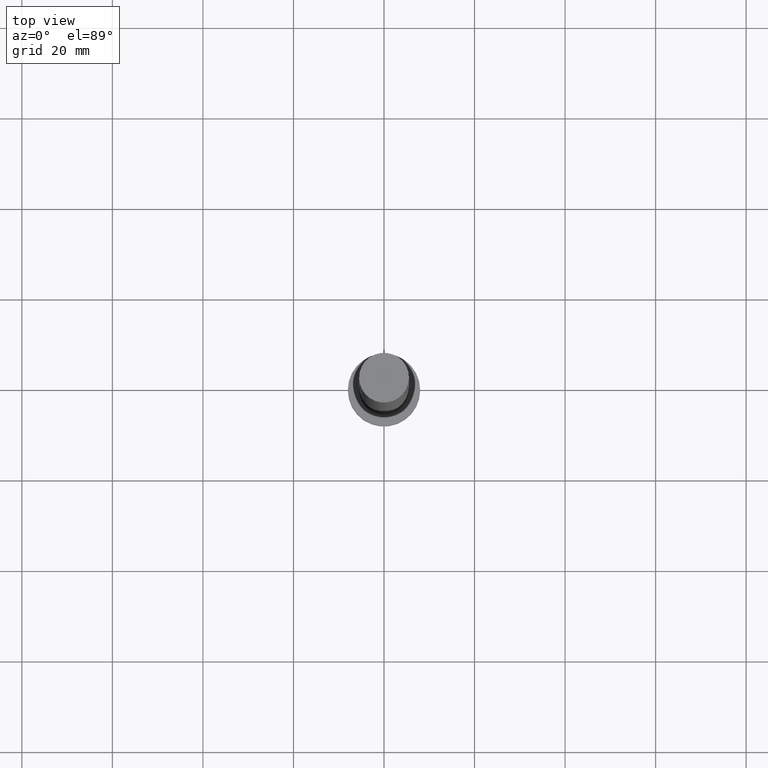
[diagram: clean part render]
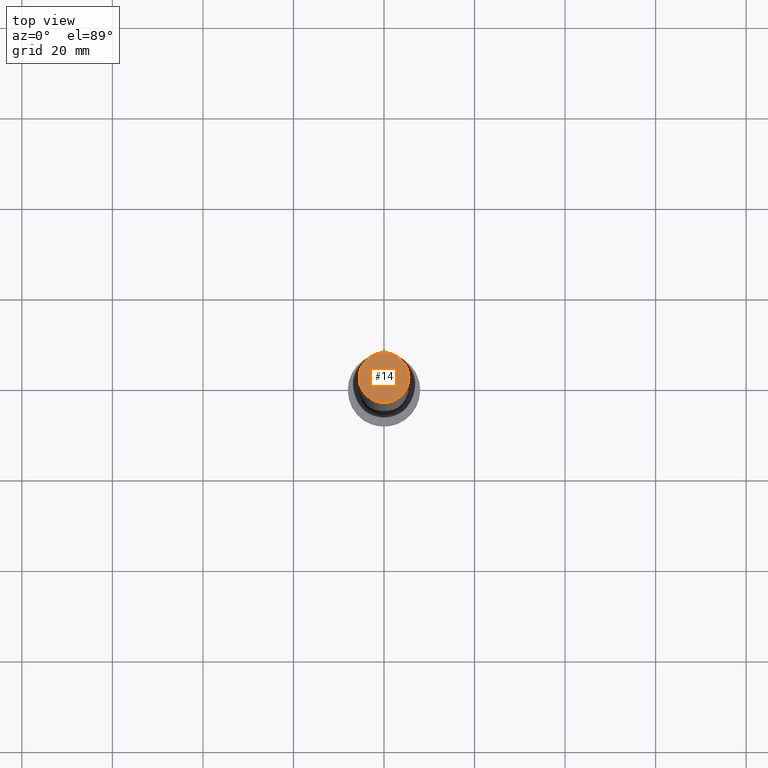
[diagram: same view with one face highlighted and labeled with its STEP entity id]
A machine part, top view. The second image highlights one B-rep face of the part: STEP entity #14.
In plain terms, the highlighted planar face has unit normal (0, 0, 1).
Its self-contained STEP definition (entity closure, byte-faithful):
#11 = VERTEX_POINT ( 'NONE', #132 ) ;
#14 = ADVANCED_FACE ( 'NONE', ( #207 ), #15, .T. ) ;
#15 = PLANE ( 'NONE',  #253 ) ;
#30 = EDGE_CURVE ( 'NONE', #67, #11, #124, .T. ) ;
#37 = DIRECTION ( 'NONE',  ( 0.000000000000000000, 0.000000000000000000, 1.000000000000000000 ) ) ;
#55 = DIRECTION ( 'NONE',  ( 1.000000000000000000, 0.000000000000000000, -0.000000000000000000 ) ) ;
#57 = DIRECTION ( 'NONE',  ( 1.000000000000000000, 0.000000000000000000, 0.000000000000000000 ) ) ;
#67 = VERTEX_POINT ( 'NONE', #97 ) ;
#73 = DIRECTION ( 'NONE',  ( 0.000000000000000000, 0.000000000000000000, 1.000000000000000000 ) ) ;
#75 = DIRECTION ( 'NONE',  ( 1.000000000000000000, 0.000000000000000000, 0.000000000000000000 ) ) ;
#91 = EDGE_CURVE ( 'NONE', #11, #67, #100, .T. ) ;
#97 = CARTESIAN_POINT ( 'NONE',  ( 5.500000000000000000, 6.735557395310442023E-16, 160.0000000000000000 ) ) ;
#100 = CIRCLE ( 'NONE', #106, 5.500000000000000000 ) ;
#106 = AXIS2_PLACEMENT_3D ( 'NONE', #107, #37, #75 ) ;
#107 = CARTESIAN_POINT ( 'NONE',  ( 0.000000000000000000, 0.000000000000000000, 160.0000000000000000 ) ) ;
#124 = CIRCLE ( 'NONE', #238, 5.500000000000000000 ) ;
#132 = CARTESIAN_POINT ( 'NONE',  ( -5.500000000000000000, 0.000000000000000000, 160.0000000000000000 ) ) ;
#147 = DIRECTION ( 'NONE',  ( 0.000000000000000000, 0.000000000000000000, 1.000000000000000000 ) ) ;
#161 = ORIENTED_EDGE ( 'NONE', *, *, #30, .T. ) ;
#185 = CARTESIAN_POINT ( 'NONE',  ( 0.000000000000000000, 0.000000000000000000, 160.0000000000000000 ) ) ;
#207 = FACE_OUTER_BOUND ( 'NONE', #241, .T. ) ;
#237 = ORIENTED_EDGE ( 'NONE', *, *, #91, .T. ) ;
#238 = AXIS2_PLACEMENT_3D ( 'NONE', #185, #147, #57 ) ;
#241 = EDGE_LOOP ( 'NONE', ( #237, #161 ) ) ;
#246 = CARTESIAN_POINT ( 'NONE',  ( 0.000000000000000000, 0.000000000000000000, 160.0000000000000000 ) ) ;
#253 = AXIS2_PLACEMENT_3D ( 'NONE', #246, #73, #55 ) ;